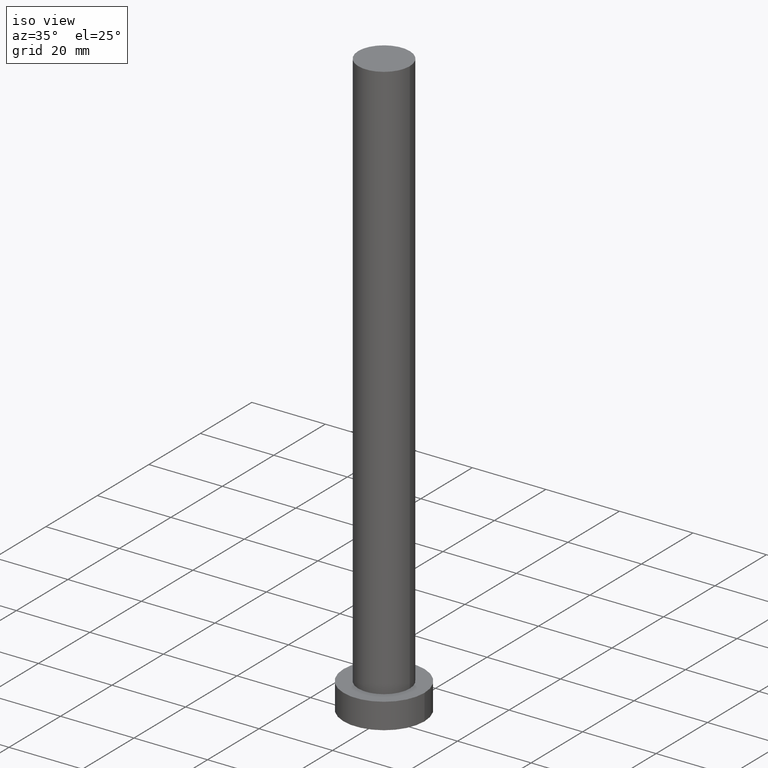
[diagram: clean part render]
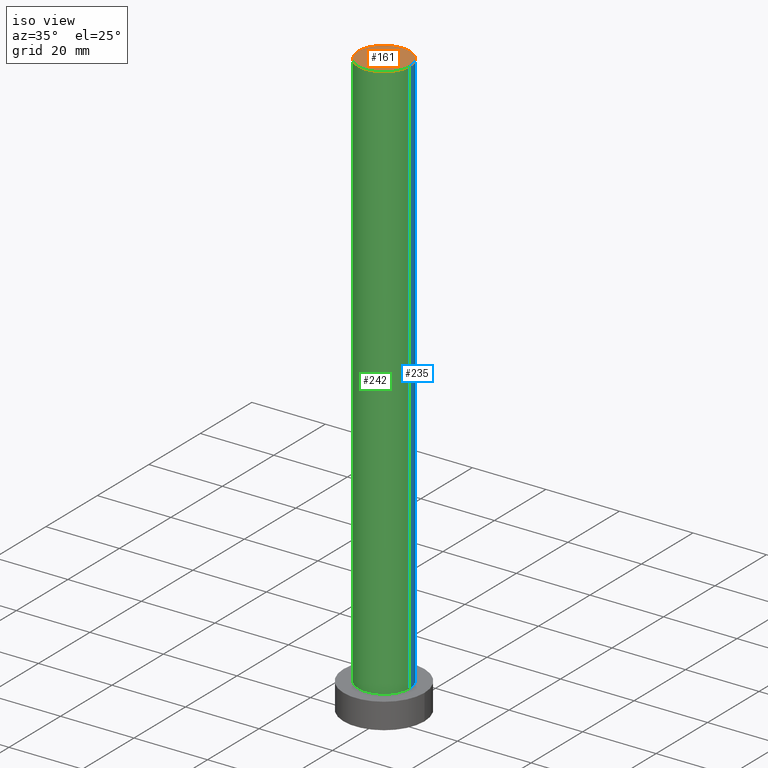
[diagram: same view with three faces highlighted in distinct colors, each labeled with its STEP entity id]
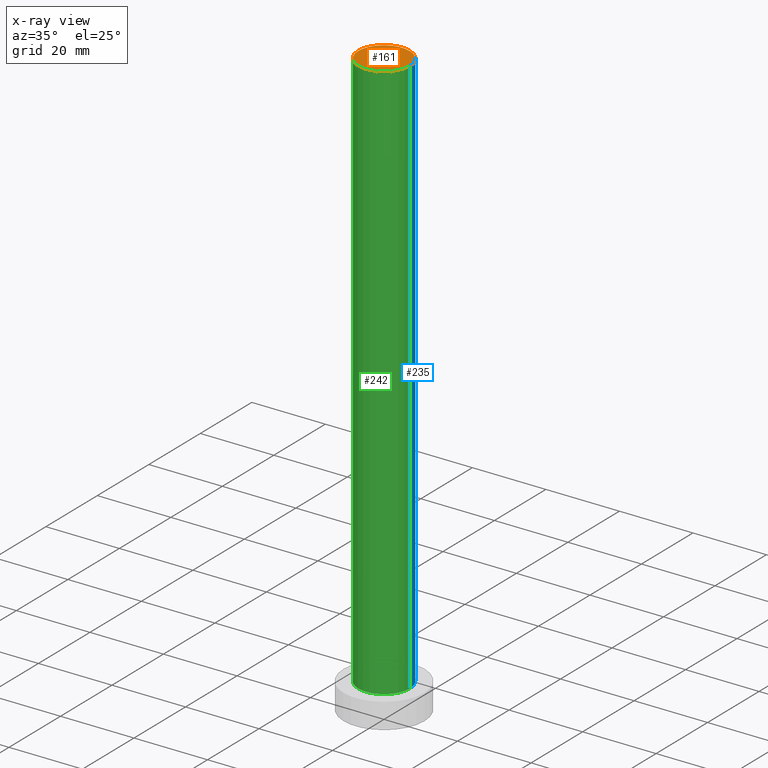
[diagram: x-ray of the same camera — body ghosted, the three highlighted faces saturated]
A machine part, iso view with three faces highlighted in distinct colors.
The next image is the same camera in x-ray (body ghosted, the three faces saturated) — at least one of them is partly hidden behind the body in this view.
Their STEP definitions:

[orange] entity #161 — the highlighted planar face has unit normal (0, 0, 1).
#4 = DIRECTION ( 'NONE',  ( 1.000000000000000000, 0.000000000000000000, -0.000000000000000000 ) ) ;
#16 = AXIS2_PLACEMENT_3D ( 'NONE', #83, #162, #65 ) ;
#48 = AXIS2_PLACEMENT_3D ( 'NONE', #75, #54, #131 ) ;
#54 = DIRECTION ( 'NONE',  ( 0.000000000000000000, 0.000000000000000000, 1.000000000000000000 ) ) ;
#61 = CIRCLE ( 'NONE', #16, 7.000000000000000000 ) ;
#65 = DIRECTION ( 'NONE',  ( 1.000000000000000000, 0.000000000000000000, 0.000000000000000000 ) ) ;
#68 = CARTESIAN_POINT ( 'NONE',  ( 0.000000000000000000, 0.000000000000000000, 160.0000000000000000 ) ) ;
#69 = VERTEX_POINT ( 'NONE', #203 ) ;
#71 = CARTESIAN_POINT ( 'NONE',  ( 7.000000000000000000, 8.572527594031473190E-16, 160.0000000000000000 ) ) ;
#74 = EDGE_CURVE ( 'NONE', #247, #69, #61, .T. ) ;
#75 = CARTESIAN_POINT ( 'NONE',  ( 0.000000000000000000, 0.000000000000000000, 160.0000000000000000 ) ) ;
#81 = PLANE ( 'NONE',  #124 ) ;
#83 = CARTESIAN_POINT ( 'NONE',  ( 0.000000000000000000, 0.000000000000000000, 160.0000000000000000 ) ) ;
#107 = EDGE_CURVE ( 'NONE', #69, #247, #139, .T. ) ;
#124 = AXIS2_PLACEMENT_3D ( 'NONE', #68, #246, #4 ) ;
#131 = DIRECTION ( 'NONE',  ( 1.000000000000000000, 0.000000000000000000, 0.000000000000000000 ) ) ;
#139 = CIRCLE ( 'NONE', #48, 7.000000000000000000 ) ;
#147 = ORIENTED_EDGE ( 'NONE', *, *, #74, .T. ) ;
#158 = FACE_OUTER_BOUND ( 'NONE', #164, .T. ) ;
#161 = ADVANCED_FACE ( 'NONE', ( #158 ), #81, .T. ) ;
#162 = DIRECTION ( 'NONE',  ( 0.000000000000000000, 0.000000000000000000, 1.000000000000000000 ) ) ;
#164 = EDGE_LOOP ( 'NONE', ( #244, #147 ) ) ;
#203 = CARTESIAN_POINT ( 'NONE',  ( -7.000000000000000000, 0.000000000000000000, 160.0000000000000000 ) ) ;
#244 = ORIENTED_EDGE ( 'NONE', *, *, #107, .T. ) ;
#246 = DIRECTION ( 'NONE',  ( 0.000000000000000000, 0.000000000000000000, 1.000000000000000000 ) ) ;
#247 = VERTEX_POINT ( 'NONE', #71 ) ;

[blue] entity #235 — the highlighted cylindrical surface (edge-blend (fillet) strip) has radius 7 mm, axis along (-0, -0, -1).
#8 = FACE_OUTER_BOUND ( 'NONE', #185, .T. ) ;
#9 = CARTESIAN_POINT ( 'NONE',  ( 7.000000000000000000, 8.572527594031473190E-16, 7.000000000000000000 ) ) ;
#10 = ORIENTED_EDGE ( 'NONE', *, *, #74, .F. ) ;
#16 = AXIS2_PLACEMENT_3D ( 'NONE', #83, #162, #65 ) ;
#20 = EDGE_CURVE ( 'NONE', #233, #209, #208, .T. ) ;
#21 = CARTESIAN_POINT ( 'NONE',  ( -7.000000000000000000, 0.000000000000000000, 160.0000000000000000 ) ) ;
#23 = DIRECTION ( 'NONE',  ( -0.000000000000000000, -0.000000000000000000, -1.000000000000000000 ) ) ;
#34 = CARTESIAN_POINT ( 'NONE',  ( 7.000000000000000000, 8.572527594031473190E-16, 160.0000000000000000 ) ) ;
#42 = CARTESIAN_POINT ( 'NONE',  ( 0.000000000000000000, 0.000000000000000000, 160.0000000000000000 ) ) ;
#44 = ORIENTED_EDGE ( 'NONE', *, *, #82, .T. ) ;
#61 = CIRCLE ( 'NONE', #16, 7.000000000000000000 ) ;
#65 = DIRECTION ( 'NONE',  ( 1.000000000000000000, 0.000000000000000000, 0.000000000000000000 ) ) ;
#69 = VERTEX_POINT ( 'NONE', #203 ) ;
#70 = VECTOR ( 'NONE', #104, 1000.000000000000000 ) ;
#71 = CARTESIAN_POINT ( 'NONE',  ( 7.000000000000000000, 8.572527594031473190E-16, 160.0000000000000000 ) ) ;
#74 = EDGE_CURVE ( 'NONE', #247, #69, #61, .T. ) ;
#76 = AXIS2_PLACEMENT_3D ( 'NONE', #222, #202, #183 ) ;
#82 = EDGE_CURVE ( 'NONE', #247, #233, #213, .T. ) ;
#83 = CARTESIAN_POINT ( 'NONE',  ( 0.000000000000000000, 0.000000000000000000, 160.0000000000000000 ) ) ;
#88 = CARTESIAN_POINT ( 'NONE',  ( -7.000000000000000000, 0.000000000000000000, 7.000000000000000000 ) ) ;
#90 = VECTOR ( 'NONE', #151, 1000.000000000000000 ) ;
#104 = DIRECTION ( 'NONE',  ( -0.000000000000000000, -0.000000000000000000, -1.000000000000000000 ) ) ;
#108 = CYLINDRICAL_SURFACE ( 'NONE', #207, 7.000000000000000000 ) ;
#120 = LINE ( 'NONE', #21, #70 ) ;
#129 = ORIENTED_EDGE ( 'NONE', *, *, #142, .F. ) ;
#142 = EDGE_CURVE ( 'NONE', #69, #209, #120, .T. ) ;
#151 = DIRECTION ( 'NONE',  ( -0.000000000000000000, -0.000000000000000000, -1.000000000000000000 ) ) ;
#162 = DIRECTION ( 'NONE',  ( 0.000000000000000000, 0.000000000000000000, 1.000000000000000000 ) ) ;
#169 = DIRECTION ( 'NONE',  ( -1.000000000000000000, 0.000000000000000000, 0.000000000000000000 ) ) ;
#183 = DIRECTION ( 'NONE',  ( 1.000000000000000000, 0.000000000000000000, 0.000000000000000000 ) ) ;
#185 = EDGE_LOOP ( 'NONE', ( #10, #44, #189, #129 ) ) ;
#189 = ORIENTED_EDGE ( 'NONE', *, *, #20, .T. ) ;
#202 = DIRECTION ( 'NONE',  ( 0.000000000000000000, 0.000000000000000000, 1.000000000000000000 ) ) ;
#203 = CARTESIAN_POINT ( 'NONE',  ( -7.000000000000000000, 0.000000000000000000, 160.0000000000000000 ) ) ;
#207 = AXIS2_PLACEMENT_3D ( 'NONE', #42, #23, #169 ) ;
#208 = CIRCLE ( 'NONE', #76, 7.000000000000000000 ) ;
#209 = VERTEX_POINT ( 'NONE', #88 ) ;
#213 = LINE ( 'NONE', #34, #90 ) ;
#222 = CARTESIAN_POINT ( 'NONE',  ( 0.000000000000000000, 0.000000000000000000, 7.000000000000000000 ) ) ;
#233 = VERTEX_POINT ( 'NONE', #9 ) ;
#235 = ADVANCED_FACE ( 'NONE', ( #8 ), #108, .T. ) ;
#247 = VERTEX_POINT ( 'NONE', #71 ) ;

[green] entity #242 — the highlighted cylindrical surface (edge-blend (fillet) strip) has radius 7 mm, axis along (-0, -0, -1).
#1 = CARTESIAN_POINT ( 'NONE',  ( 0.000000000000000000, 0.000000000000000000, 160.0000000000000000 ) ) ;
#9 = CARTESIAN_POINT ( 'NONE',  ( 7.000000000000000000, 8.572527594031473190E-16, 7.000000000000000000 ) ) ;
#21 = CARTESIAN_POINT ( 'NONE',  ( -7.000000000000000000, 0.000000000000000000, 160.0000000000000000 ) ) ;
#26 = EDGE_CURVE ( 'NONE', #209, #233, #224, .T. ) ;
#28 = DIRECTION ( 'NONE',  ( -1.000000000000000000, 0.000000000000000000, 0.000000000000000000 ) ) ;
#31 = DIRECTION ( 'NONE',  ( 0.000000000000000000, 0.000000000000000000, 1.000000000000000000 ) ) ;
#34 = CARTESIAN_POINT ( 'NONE',  ( 7.000000000000000000, 8.572527594031473190E-16, 160.0000000000000000 ) ) ;
#43 = FACE_OUTER_BOUND ( 'NONE', #49, .T. ) ;
#48 = AXIS2_PLACEMENT_3D ( 'NONE', #75, #54, #131 ) ;
#49 = EDGE_LOOP ( 'NONE', ( #228, #234, #125, #143 ) ) ;
#54 = DIRECTION ( 'NONE',  ( 0.000000000000000000, 0.000000000000000000, 1.000000000000000000 ) ) ;
#69 = VERTEX_POINT ( 'NONE', #203 ) ;
#70 = VECTOR ( 'NONE', #104, 1000.000000000000000 ) ;
#71 = CARTESIAN_POINT ( 'NONE',  ( 7.000000000000000000, 8.572527594031473190E-16, 160.0000000000000000 ) ) ;
#75 = CARTESIAN_POINT ( 'NONE',  ( 0.000000000000000000, 0.000000000000000000, 160.0000000000000000 ) ) ;
#82 = EDGE_CURVE ( 'NONE', #247, #233, #213, .T. ) ;
#85 = CARTESIAN_POINT ( 'NONE',  ( 0.000000000000000000, 0.000000000000000000, 7.000000000000000000 ) ) ;
#88 = CARTESIAN_POINT ( 'NONE',  ( -7.000000000000000000, 0.000000000000000000, 7.000000000000000000 ) ) ;
#90 = VECTOR ( 'NONE', #151, 1000.000000000000000 ) ;
#104 = DIRECTION ( 'NONE',  ( -0.000000000000000000, -0.000000000000000000, -1.000000000000000000 ) ) ;
#107 = EDGE_CURVE ( 'NONE', #69, #247, #139, .T. ) ;
#113 = AXIS2_PLACEMENT_3D ( 'NONE', #85, #31, #211 ) ;
#120 = LINE ( 'NONE', #21, #70 ) ;
#125 = ORIENTED_EDGE ( 'NONE', *, *, #142, .T. ) ;
#131 = DIRECTION ( 'NONE',  ( 1.000000000000000000, 0.000000000000000000, 0.000000000000000000 ) ) ;
#139 = CIRCLE ( 'NONE', #48, 7.000000000000000000 ) ;
#142 = EDGE_CURVE ( 'NONE', #69, #209, #120, .T. ) ;
#143 = ORIENTED_EDGE ( 'NONE', *, *, #26, .T. ) ;
#146 = CYLINDRICAL_SURFACE ( 'NONE', #254, 7.000000000000000000 ) ;
#151 = DIRECTION ( 'NONE',  ( -0.000000000000000000, -0.000000000000000000, -1.000000000000000000 ) ) ;
#187 = DIRECTION ( 'NONE',  ( -0.000000000000000000, -0.000000000000000000, -1.000000000000000000 ) ) ;
#203 = CARTESIAN_POINT ( 'NONE',  ( -7.000000000000000000, 0.000000000000000000, 160.0000000000000000 ) ) ;
#209 = VERTEX_POINT ( 'NONE', #88 ) ;
#211 = DIRECTION ( 'NONE',  ( 1.000000000000000000, 0.000000000000000000, 0.000000000000000000 ) ) ;
#213 = LINE ( 'NONE', #34, #90 ) ;
#224 = CIRCLE ( 'NONE', #113, 7.000000000000000000 ) ;
#228 = ORIENTED_EDGE ( 'NONE', *, *, #82, .F. ) ;
#233 = VERTEX_POINT ( 'NONE', #9 ) ;
#234 = ORIENTED_EDGE ( 'NONE', *, *, #107, .F. ) ;
#242 = ADVANCED_FACE ( 'NONE', ( #43 ), #146, .T. ) ;
#247 = VERTEX_POINT ( 'NONE', #71 ) ;
#254 = AXIS2_PLACEMENT_3D ( 'NONE', #1, #187, #28 ) ;